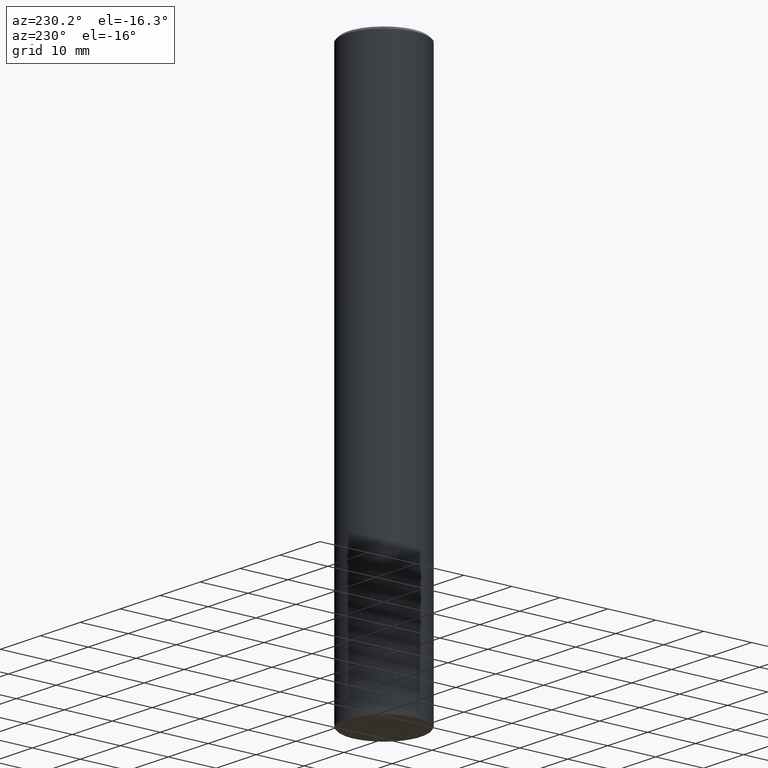
[diagram: clean part render]
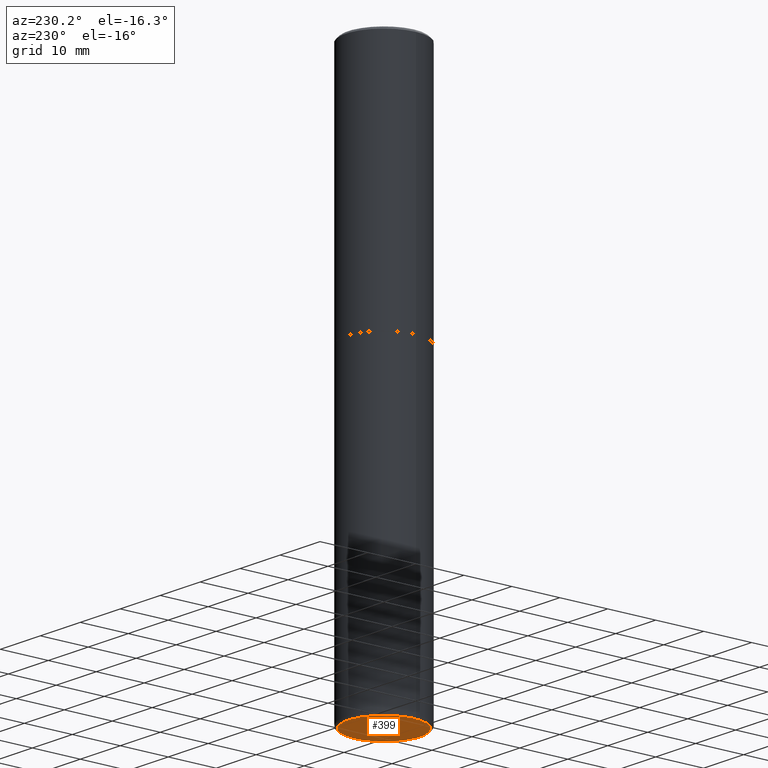
[diagram: same view with one face highlighted and labeled with its STEP entity id]
A machine part, auxiliary view. The second image highlights one B-rep face of the part: STEP entity #399.
In plain terms, the highlighted planar face has unit normal (0, -0, -1).
Its self-contained STEP definition (entity closure, byte-faithful):
#21 = CARTESIAN_POINT ( 'NONE',  ( 0.2952500000000000124, -1.786975064033309928E-14, -4.527600000000000513 ) ) ;
#37 = DIRECTION ( 'NONE',  ( -2.445468806185136597E-29, 3.491481338843145583E-15, 1.000000000000000000 ) ) ;
#39 = EDGE_LOOP ( 'NONE', ( #294, #314 ) ) ;
#41 = DIRECTION ( 'NONE',  ( -2.445468806185136597E-29, 3.491481338843145583E-15, 1.000000000000000000 ) ) ;
#74 = CIRCLE ( 'NONE', #135, 0.2952500000000000124 ) ;
#103 = AXIS2_PLACEMENT_3D ( 'NONE', #127, #41, #300 ) ;
#123 = CIRCLE ( 'NONE', #103, 0.2952500000000000124 ) ;
#127 = CARTESIAN_POINT ( 'NONE',  ( 1.107210456688382522E-28, -1.580803090974622705E-14, -4.527600000000000513 ) ) ;
#135 = AXIS2_PLACEMENT_3D ( 'NONE', #326, #37, #362 ) ;
#170 = FACE_OUTER_BOUND ( 'NONE', #39, .T. ) ;
#181 = CARTESIAN_POINT ( 'NONE',  ( -0.2952500000000000124, -1.360577393175455631E-14, -4.527600000000000513 ) ) ;
#191 = VERTEX_POINT ( 'NONE', #21 ) ;
#236 = PLANE ( 'NONE',  #365 ) ;
#264 = DIRECTION ( 'NONE',  ( 2.438088387897960049E-29, -3.491481338843145188E-15, -1.000000000000000000 ) ) ;
#294 = ORIENTED_EDGE ( 'NONE', *, *, #394, .F. ) ;
#296 = CARTESIAN_POINT ( 'NONE',  ( 5.221450880235528142E-29, -2.418649998755440149E-14, -4.527600000000000513 ) ) ;
#298 = DIRECTION ( 'NONE',  ( -1.000000000000000000, 6.982962677686265922E-15, -4.876176775795935793E-29 ) ) ;
#300 = DIRECTION ( 'NONE',  ( 1.000000000000000000, -6.982962677686273021E-15, 0.000000000000000000 ) ) ;
#311 = VERTEX_POINT ( 'NONE', #181 ) ;
#314 = ORIENTED_EDGE ( 'NONE', *, *, #385, .F. ) ;
#326 = CARTESIAN_POINT ( 'NONE',  ( 1.107210456688382522E-28, -1.580803090974622705E-14, -4.527600000000000513 ) ) ;
#362 = DIRECTION ( 'NONE',  ( 1.000000000000000000, -6.982962677686273021E-15, 0.000000000000000000 ) ) ;
#365 = AXIS2_PLACEMENT_3D ( 'NONE', #296, #264, #298 ) ;
#385 = EDGE_CURVE ( 'NONE', #311, #191, #74, .T. ) ;
#394 = EDGE_CURVE ( 'NONE', #191, #311, #123, .T. ) ;
#399 = ADVANCED_FACE ( 'NONE', ( #170 ), #236, .T. ) ;